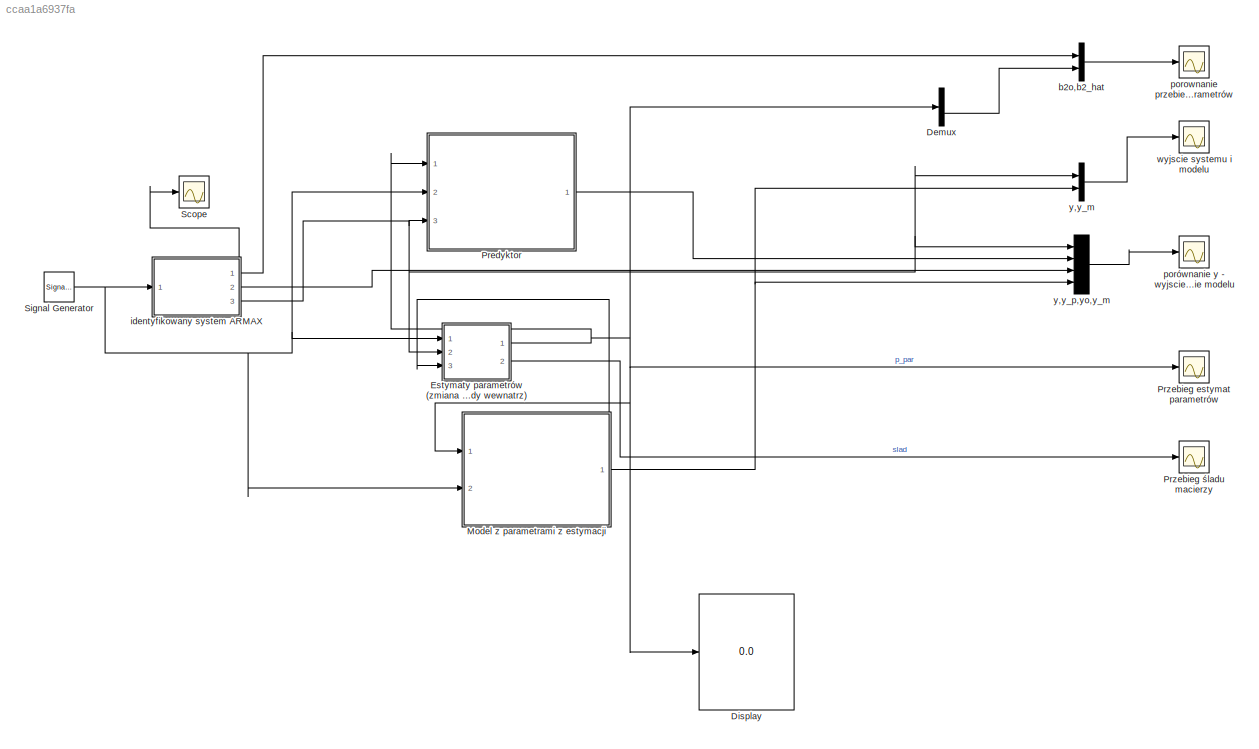
MODEL mdl_ccaa1a6937fa
KIND model
CONFIG AbsTol = auto
CONFIG EnableMultiTasking = on
CONFIG FixedStep = auto
CONFIG MaxStep = auto
CONFIG MinStep = auto
CONFIG RelTol = 1e-3
CONFIG SampleTimeConstraint = Unconstrained
CONFIG SolverName = FixedStepDiscrete
CONFIG StartTime = 0.0
CONFIG StopTime = tend
BLOCK [Demux] Demux
  Outputs = [2;1]
  Ports = [1, 2]
BLOCK [Display] Display
  Decimation = 1
  Ports = [1]
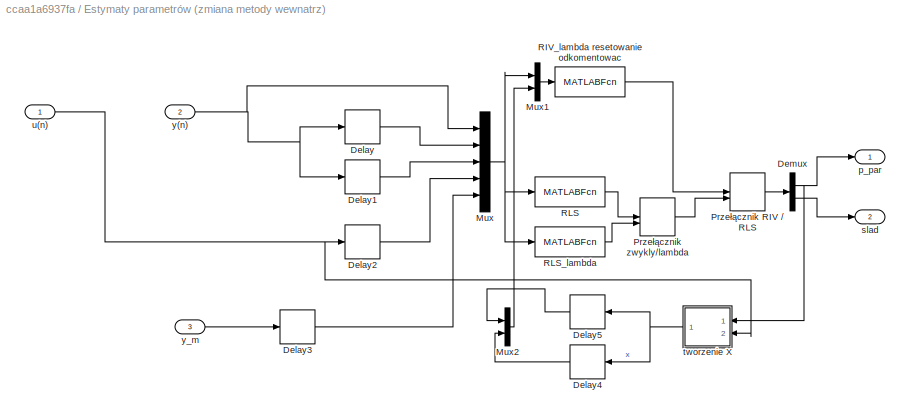
BLOCK [SubSystem] Estymaty parametrów (zmiana metody wewnatrz)
  Ports = [3, 2]
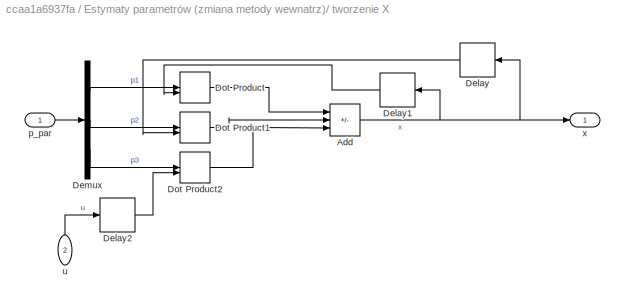
BLOCK [SubSystem] Estymaty parametrów (zmiana metody wewnatrz)/ tworzenie X
  NameLocation = top
  Ports = [2, 1]
BLOCK [Sum] Estymaty parametrów (zmiana metody wewnatrz)/ tworzenie X/Add
  IconShape = rectangular
  Inputs = --+
  Ports = [3, 1]
BLOCK [Delay] Estymaty parametrów (zmiana metody wewnatrz)/ tworzenie X/Delay
  DelayLength = 1
  InitialCondition = 0
  InputPortMap = u0
  NameLocation = top
  Ports = [1, 1]
  SampleTime = Tp
BLOCK [Delay] Estymaty parametrów (zmiana metody wewnatrz)/ tworzenie X/Delay1
  InitialCondition = 0
  InputPortMap = u0
  NameLocation = top
  Ports = [1, 1]
  SampleTime = Tp
BLOCK [Delay] Estymaty parametrów (zmiana metody wewnatrz)/ tworzenie X/Delay2
  InitialCondition = 0
  InputPortMap = u0
  Ports = [1, 1]
  SampleTime = Tp
BLOCK [Demux] Estymaty parametrów (zmiana metody wewnatrz)/ tworzenie X/Demux
  Outputs = 3
  Ports = [1, 3]
BLOCK [DotProduct] Estymaty parametrów (zmiana metody wewnatrz)/ tworzenie X/Dot Product
  OutDataTypeStr = Inherit: Inherit via internal rule
BLOCK [DotProduct] Estymaty parametrów (zmiana metody wewnatrz)/ tworzenie X/Dot Product1
  OutDataTypeStr = Inherit: Inherit via internal rule
BLOCK [DotProduct] Estymaty parametrów (zmiana metody wewnatrz)/ tworzenie X/Dot Product2
  OutDataTypeStr = Inherit: Inherit via internal rule
BLOCK [Inport] Estymaty parametrów (zmiana metody wewnatrz)/ tworzenie X/p_par
BLOCK [Inport] Estymaty parametrów (zmiana metody wewnatrz)/ tworzenie X/u
  NameLocation = right
  Port = 2
BLOCK [Outport] Estymaty parametrów (zmiana metody wewnatrz)/ tworzenie X/x
BLOCK [Delay] Estymaty parametrów (zmiana metody wewnatrz)/Delay
  DelayLength = 1
  InitialCondition = 0
  InputPortMap = u0
  Ports = [1, 1]
BLOCK [Delay] Estymaty parametrów (zmiana metody wewnatrz)/Delay1
  InitialCondition = 0
  InputPortMap = u0
  Ports = [1, 1]
BLOCK [Delay] Estymaty parametrów (zmiana metody wewnatrz)/Delay2
  InitialCondition = 0
  InputPortMap = u0
  Ports = [1, 1]
BLOCK [Delay] Estymaty parametrów (zmiana metody wewnatrz)/Delay3
  DelayLength = 1
  InitialCondition = 0
  InputPortMap = u0
  Ports = [1, 1]
BLOCK [Delay] Estymaty parametrów (zmiana metody wewnatrz)/Delay4
  InitialCondition = 0
  InputPortMap = u0
  NameLocation = top
  Ports = [1, 1]
  SampleTime = Tp
BLOCK [Delay] Estymaty parametrów (zmiana metody wewnatrz)/Delay5
  DelayLength = 1
  InitialCondition = 0
  InputPortMap = u0
  NameLocation = top
  Ports = [1, 1]
  SampleTime = Tp
BLOCK [Demux] Estymaty parametrów (zmiana metody wewnatrz)/Demux
  Outputs = [3;1]
  Ports = [1, 2]
BLOCK [Mux] Estymaty parametrów (zmiana metody wewnatrz)/Mux
  DisplayOption = bar
  Inputs = 5
  Ports = [5, 1]
BLOCK [Mux] Estymaty parametrów (zmiana metody wewnatrz)/Mux1
  DisplayOption = bar
  Inputs = 2
  Ports = [2, 1]
BLOCK [Mux] Estymaty parametrów (zmiana metody wewnatrz)/Mux2
  DisplayOption = bar
  Inputs = 2
  Ports = [2, 1]
BLOCK [ManualSwitch] Estymaty parametrów (zmiana metody wewnatrz)/Przełącznik RIV // RLS
  CurrentSetting = 0
BLOCK [ManualSwitch] Estymaty parametrów (zmiana metody wewnatrz)/Przełącznik zwykly//lambda
  CurrentSetting = 0
BLOCK [MATLABFcn] Estymaty parametrów (zmiana metody wewnatrz)/RIV_lambda resetowanie odkomentowac
  MATLABFcn = RIV_lambda
  OutputDimensions = 4
  Ports = [1, 1]
BLOCK [MATLABFcn] Estymaty parametrów (zmiana metody wewnatrz)/RLS
  MATLABFcn = RLS_fcn
  OutputDimensions = 4
  Ports = [1, 1]
BLOCK [MATLABFcn] Estymaty parametrów (zmiana metody wewnatrz)/RLS_lambda
  MATLABFcn = RLS_lambda
  OutputDimensions = 4
  Ports = [1, 1]
BLOCK [Outport] Estymaty parametrów (zmiana metody wewnatrz)/p_par
BLOCK [Outport] Estymaty parametrów (zmiana metody wewnatrz)/slad
  Port = 2
BLOCK [Inport] Estymaty parametrów (zmiana metody wewnatrz)/u(n)
BLOCK [Inport] Estymaty parametrów (zmiana metody wewnatrz)/y(n)
  Port = 2
BLOCK [Inport] Estymaty parametrów (zmiana metody wewnatrz)/y_m
  Port = 3
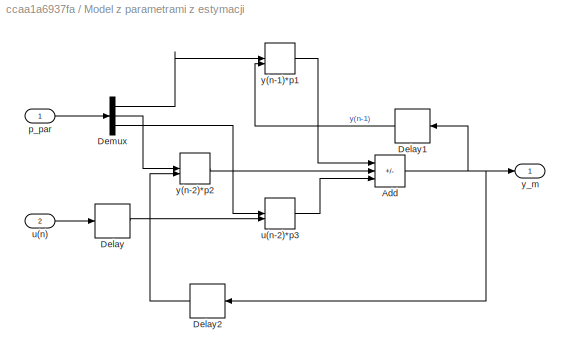
BLOCK [SubSystem] Model z parametrami z estymacji
  Ports = [2, 1]
BLOCK [Sum] Model z parametrami z estymacji/Add
  IconShape = rectangular
  Inputs = --+
  Ports = [3, 1]
BLOCK [Delay] Model z parametrami z estymacji/Delay
  InitialCondition = 0
  InputPortMap = u0
  Ports = [1, 1]
BLOCK [Delay] Model z parametrami z estymacji/Delay1
  DelayLength = 1
  InitialCondition = 0
  InputPortMap = u0
  NameLocation = top
  Ports = [1, 1]
BLOCK [Delay] Model z parametrami z estymacji/Delay2
  InitialCondition = 0
  InputPortMap = u0
  NameLocation = top
  Ports = [1, 1]
BLOCK [Demux] Model z parametrami z estymacji/Demux
  Outputs = 3
  Ports = [1, 3]
BLOCK [Inport] Model z parametrami z estymacji/p_par
BLOCK [Inport] Model z parametrami z estymacji/u(n)
  Port = 2
BLOCK [DotProduct] Model z parametrami z estymacji/u(n-2)*p3
  OutDataTypeStr = Inherit: Inherit via internal rule
BLOCK [DotProduct] Model z parametrami z estymacji/y(n-1)*p1
  OutDataTypeStr = Inherit: Inherit via internal rule
BLOCK [DotProduct] Model z parametrami z estymacji/y(n-2)*p2
  OutDataTypeStr = Inherit: Inherit via internal rule
BLOCK [Outport] Model z parametrami z estymacji/y_m
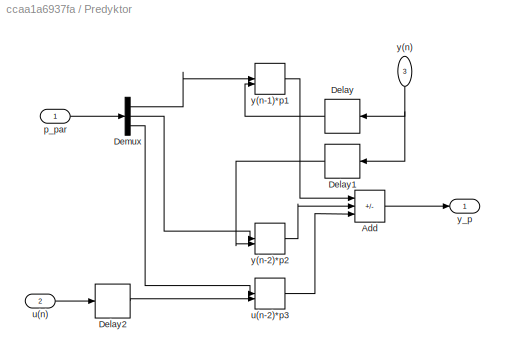
BLOCK [SubSystem] Predyktor
  Ports = [3, 1]
BLOCK [Sum] Predyktor/Add
  IconShape = rectangular
  Inputs = --+
  Ports = [3, 1]
BLOCK [Delay] Predyktor/Delay
  DelayLength = 1
  InitialCondition = 0
  InputPortMap = u0
  NameLocation = top
  Ports = [1, 1]
BLOCK [Delay] Predyktor/Delay1
  InitialCondition = 0
  InputPortMap = u0
  NameLocation = top
  Ports = [1, 1]
BLOCK [Delay] Predyktor/Delay2
  InitialCondition = 0
  InputPortMap = u0
  Ports = [1, 1]
BLOCK [Demux] Predyktor/Demux
  Outputs = 3
  Ports = [1, 3]
BLOCK [Inport] Predyktor/p_par
BLOCK [Inport] Predyktor/u(n)
  Port = 2
BLOCK [DotProduct] Predyktor/u(n-2)*p3
  OutDataTypeStr = Inherit: Inherit via internal rule
BLOCK [Inport] Predyktor/y(n)
  NameLocation = left
  Port = 3
BLOCK [DotProduct] Predyktor/y(n-1)*p1
  OutDataTypeStr = Inherit: Inherit via internal rule
BLOCK [DotProduct] Predyktor/y(n-2)*p2
  OutDataTypeStr = Inherit: Inherit via internal rule
BLOCK [Outport] Predyktor/y_p
BLOCK [Scope] Przebieg estymat parametrów
  Floating = off
  NumInputPorts = 1
  Ports = [1]
  ScopeSpecificationString = Simulink.scopes.TimeScopeBlockCfg('CurrentConfiguration', extmgr.ConfigurationSet(extmgr.Configuration('Core','General UI',true),extmgr.Configuration('Core','Source UI',true),extmgr.Configuration('Sources','WiredSimulink',true,'DataLoggingVariableName','ScopeData1'),extmgr.Configuration('Visuals','Time Domain',true,'SerializedDisplays',{struct('MinYLimReal','-2.21596','MaxYLimReal','1.2427','YLabe...<+1386ch>
BLOCK [Scope] Przebieg śladu macierzy
  Floating = off
  NumInputPorts = 1
  Ports = [1]
  ScopeSpecificationString = Simulink.scopes.TimeScopeBlockCfg('CurrentConfiguration', extmgr.ConfigurationSet(extmgr.Configuration('Core','General UI',true),extmgr.Configuration('Core','Source UI',true),extmgr.Configuration('Sources','WiredSimulink',true,'DataLoggingVariableName','ScopeData2'),extmgr.Configuration('Visuals','Time Domain',true,'SerializedDisplays',{struct('MinYLimReal','-3.14185','MaxYLimReal','34.34455','YLa...<+1394ch>
BLOCK [Scope] Scope
  Floating = off
  NumInputPorts = 1
  Ports = [1]
  ScopeSpecificationString = Simulink.scopes.TimeScopeBlockCfg('CurrentConfiguration', extmgr.ConfigurationSet(extmgr.Configuration('Core','General UI',true),extmgr.Configuration('Core','Source UI',true),extmgr.Configuration('Sources','WiredSimulink',true,'DataLoggingVariableName','ScopeData3'),extmgr.Configuration('Visuals','Time Domain',true,'SerializedDisplays',{struct('MinYLimReal','-9.62705','MaxYLimReal','9.6055','YLabe...<+1414ch>
BLOCK [SignalGenerator] Signal Generator
  Frequency = 0.025
  Ports = [0, 1]
  WaveForm = square
BLOCK [Mux] b2o,b2_hat
  DisplayOption = bar
  Inputs = 2
  Ports = [2, 1]
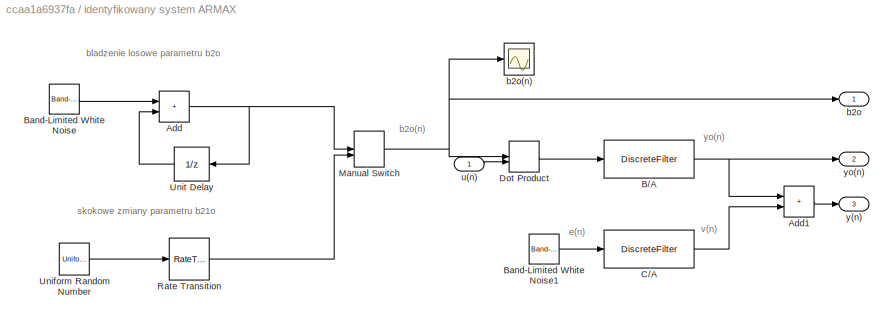
BLOCK [SubSystem] identyfikowany system ARMAX
  Ports = [1, 3]
BLOCK [Sum] identyfikowany system ARMAX/Add
  IconShape = rectangular
  Ports = [2, 1]
BLOCK [Sum] identyfikowany system ARMAX/Add1
  IconShape = rectangular
  Ports = [2, 1]
BLOCK [DiscreteFilter] identyfikowany system ARMAX/B//A
  Denominator = [1 -0.8 -0.1]
  InputPortMap = u0
  Numerator = [0 0 1]
  Ports = [1, 1]
  SampleTime = Tp
BLOCK [Reference] identyfikowany system ARMAX/Band-Limited White Noise  REF=simulink/Sources/Band-Limited
White Noise
  Ports = [0, 1]
  SourceBlock = simulink/Sources/Band-Limited\nWhite Noise
  SourceType = Band-Limited White Noise.
BLOCK [Reference] identyfikowany system ARMAX/Band-Limited White Noise1  REF=simulink/Sources/Band-Limited
White Noise
  Ports = [0, 1]
  SourceBlock = simulink/Sources/Band-Limited\nWhite Noise
  SourceType = Band-Limited White Noise.
BLOCK [DiscreteFilter] identyfikowany system ARMAX/C//A
  Denominator = [1 -0.8 -0.1]
  InputPortMap = u0
  Numerator = [1 c1o]
  Ports = [1, 1]
  SampleTime = Tp
BLOCK [DotProduct] identyfikowany system ARMAX/Dot Product
  OutDataTypeStr = Inherit: Inherit via internal rule
BLOCK [ManualSwitch] identyfikowany system ARMAX/Manual Switch
  CurrentSetting = 0
BLOCK [RateTransition] identyfikowany system ARMAX/Rate Transition
  InitialCondition = 0.5
  OutPortSampleTime = Tp
BLOCK [UniformRandomNumber] identyfikowany system ARMAX/Uniform Random Number
  Maximum = 0.8
  Minimum = 0.1
  SampleTime = Td
  Seed = 2
BLOCK [UnitDelay] identyfikowany system ARMAX/Unit Delay
  NameLocation = top
  SampleTime = Tp
BLOCK [Outport] identyfikowany system ARMAX/b2o
BLOCK [Scope] identyfikowany system ARMAX/b2o(n)
  Floating = off
  NumInputPorts = 1
  Ports = [1]
  ScopeSpecificationString = C++SS(StrPVP('Location','[188, 390, 512, 629]'),StrPVP('Open','off'),MxPVP('AxesTitles',54,'struct(''axes1'',''%<SignalLabel>'')'),StrPVP('DataFormat','StructureWithTime'),StrPVP('BlockParamSampleTime','0'),StrPVP('LimitDataPoints','on'),StrPVP('Decimation','1'),StrPVP('BlockParamSampleInput','off'))
BLOCK [Inport] identyfikowany system ARMAX/u(n)
BLOCK [Outport] identyfikowany system ARMAX/y(n)
  Port = 3
BLOCK [Outport] identyfikowany system ARMAX/yo(n)
  Port = 2
BLOCK [Scope] porownanie przebiegów parametrów
  Floating = off
  NumInputPorts = 1
  Ports = [1]
  ScopeSpecificationString = Simulink.scopes.TimeScopeBlockCfg('CurrentConfiguration', extmgr.ConfigurationSet(extmgr.Configuration('Core','General UI',true),extmgr.Configuration('Core','Source UI',true),extmgr.Configuration('Sources','WiredSimulink',true,'DataLoggingVariableName','ScopeData4'),extmgr.Configuration('Visuals','Time Domain',true,'SerializedDisplays',{struct('MinYLimReal','-0.10919','MaxYLimReal','0.98268','YLab...<+1392ch>
BLOCK [Scope] porównanie y - wyjscie systemu y_p - predyktor yo - wyjscie systemu bez szumu y_m - wyjscie modelu 
  Floating = off
  NumInputPorts = 1
  Ports = [1]
  ScopeSpecificationString = Simulink.scopes.TimeScopeBlockCfg('CurrentConfiguration', extmgr.ConfigurationSet(extmgr.Configuration('Core','General UI',true),extmgr.Configuration('Core','Source UI',true),extmgr.Configuration('Sources','WiredSimulink',true,'DataLoggingVariableName','ScopeData5'),extmgr.Configuration('Visuals','Time Domain',true,'SerializedDisplays',{struct('MinYLimReal','-16822121114500400575526026232813891137...<+2625ch>
BLOCK [Scope] wyjscie systemu i modelu
  Floating = off
  NumInputPorts = 1
  Ports = [1]
  ScopeSpecificationString = Simulink.scopes.TimeScopeBlockCfg('CurrentConfiguration', extmgr.ConfigurationSet(extmgr.Configuration('Core','General UI',true),extmgr.Configuration('Core','Source UI',true),extmgr.Configuration('Sources','WiredSimulink',true,'DataLoggingVariableName','ScopeData6'),extmgr.Configuration('Visuals','Time Domain',true,'SerializedDisplays',{struct('MinYLimReal','-42323418057458013957309615990001732309...<+2150ch>
BLOCK [Mux] y,y_m
  DisplayOption = bar
  Inputs = 2
  Ports = [2, 1]
BLOCK [Mux] y,y_p,yo,y_m
  DisplayOption = bar
  Ports = [4, 1]
ANNOTATION identyfikowany system ARMAX: b2o(n)
ANNOTATION identyfikowany system ARMAX: bladzenie losowe parametru b2o
ANNOTATION identyfikowany system ARMAX: e(n)
ANNOTATION identyfikowany system ARMAX: skokowe zmiany parametru b21o
ANNOTATION identyfikowany system ARMAX: v(n)
ANNOTATION identyfikowany system ARMAX: yo(n)
LINE Demux:2 -> b2o,b2_hat:2
NET Estymaty parametrów (zmiana metody wewnatrz)/ tworzenie X/Add:1 -> Estymaty parametrów (zmiana metody wewnatrz)/ tworzenie X/Delay1:1, Estymaty parametrów (zmiana metody wewnatrz)/ tworzenie X/Delay:1, Estymaty parametrów (zmiana metody wewnatrz)/ tworzenie X/x:1
LINE Estymaty parametrów (zmiana metody wewnatrz)/ tworzenie X/Delay1:1 -> Estymaty parametrów (zmiana metody wewnatrz)/ tworzenie X/Dot Product:2
LINE Estymaty parametrów (zmiana metody wewnatrz)/ tworzenie X/Delay2:1 -> Estymaty parametrów (zmiana metody wewnatrz)/ tworzenie X/Dot Product2:2
LINE Estymaty parametrów (zmiana metody wewnatrz)/ tworzenie X/Delay:1 -> Estymaty parametrów (zmiana metody wewnatrz)/ tworzenie X/Dot Product1:2
LINE Estymaty parametrów (zmiana metody wewnatrz)/ tworzenie X/Demux:1 -> Estymaty parametrów (zmiana metody wewnatrz)/ tworzenie X/Dot Product:1
LINE Estymaty parametrów (zmiana metody wewnatrz)/ tworzenie X/Demux:2 -> Estymaty parametrów (zmiana metody wewnatrz)/ tworzenie X/Dot Product1:1
LINE Estymaty parametrów (zmiana metody wewnatrz)/ tworzenie X/Demux:3 -> Estymaty parametrów (zmiana metody wewnatrz)/ tworzenie X/Dot Product2:1
LINE Estymaty parametrów (zmiana metody wewnatrz)/ tworzenie X/Dot Product1:1 -> Estymaty parametrów (zmiana metody wewnatrz)/ tworzenie X/Add:2
LINE Estymaty parametrów (zmiana metody wewnatrz)/ tworzenie X/Dot Product2:1 -> Estymaty parametrów (zmiana metody wewnatrz)/ tworzenie X/Add:3
LINE Estymaty parametrów (zmiana metody wewnatrz)/ tworzenie X/Dot Product:1 -> Estymaty parametrów (zmiana metody wewnatrz)/ tworzenie X/Add:1
LINE Estymaty parametrów (zmiana metody wewnatrz)/ tworzenie X/p_par:1 -> Estymaty parametrów (zmiana metody wewnatrz)/ tworzenie X/Demux:1
LINE Estymaty parametrów (zmiana metody wewnatrz)/ tworzenie X/u:1 -> Estymaty parametrów (zmiana metody wewnatrz)/ tworzenie X/Delay2:1
NET Estymaty parametrów (zmiana metody wewnatrz)/ tworzenie X:1 -> Estymaty parametrów (zmiana metody wewnatrz)/Delay4:1, Estymaty parametrów (zmiana metody wewnatrz)/Delay5:1
LINE Estymaty parametrów (zmiana metody wewnatrz)/Delay1:1 -> Estymaty parametrów (zmiana metody wewnatrz)/Mux:3
LINE Estymaty parametrów (zmiana metody wewnatrz)/Delay2:1 -> Estymaty parametrów (zmiana metody wewnatrz)/Mux:4
LINE Estymaty parametrów (zmiana metody wewnatrz)/Delay3:1 -> Estymaty parametrów (zmiana metody wewnatrz)/Mux:5
LINE Estymaty parametrów (zmiana metody wewnatrz)/Delay4:1 -> Estymaty parametrów (zmiana metody wewnatrz)/Mux2:2
LINE Estymaty parametrów (zmiana metody wewnatrz)/Delay5:1 -> Estymaty parametrów (zmiana metody wewnatrz)/Mux2:1
LINE Estymaty parametrów (zmiana metody wewnatrz)/Delay:1 -> Estymaty parametrów (zmiana metody wewnatrz)/Mux:2
NET Estymaty parametrów (zmiana metody wewnatrz)/Demux:1 -> Estymaty parametrów (zmiana metody wewnatrz)/ tworzenie X:1, Estymaty parametrów (zmiana metody wewnatrz)/p_par:1
LINE Estymaty parametrów (zmiana metody wewnatrz)/Demux:2 -> Estymaty parametrów (zmiana metody wewnatrz)/slad:1
LINE Estymaty parametrów (zmiana metody wewnatrz)/Mux1:1 -> Estymaty parametrów (zmiana metody wewnatrz)/RIV_lambda resetowanie odkomentowac:1
LINE Estymaty parametrów (zmiana metody wewnatrz)/Mux2:1 -> Estymaty parametrów (zmiana metody wewnatrz)/Mux1:2
NET Estymaty parametrów (zmiana metody wewnatrz)/Mux:1 -> Estymaty parametrów (zmiana metody wewnatrz)/Mux1:1, Estymaty parametrów (zmiana metody wewnatrz)/RLS:1, Estymaty parametrów (zmiana metody wewnatrz)/RLS_lambda:1
LINE Estymaty parametrów (zmiana metody wewnatrz)/Przełącznik RIV // RLS:1 -> Estymaty parametrów (zmiana metody wewnatrz)/Demux:1
LINE Estymaty parametrów (zmiana metody wewnatrz)/Przełącznik zwykly//lambda:1 -> Estymaty parametrów (zmiana metody wewnatrz)/Przełącznik RIV // RLS:2
LINE Estymaty parametrów (zmiana metody wewnatrz)/RIV_lambda resetowanie odkomentowac:1 -> Estymaty parametrów (zmiana metody wewnatrz)/Przełącznik RIV // RLS:1
LINE Estymaty parametrów (zmiana metody wewnatrz)/RLS:1 -> Estymaty parametrów (zmiana metody wewnatrz)/Przełącznik zwykly//lambda:1
LINE Estymaty parametrów (zmiana metody wewnatrz)/RLS_lambda:1 -> Estymaty parametrów (zmiana metody wewnatrz)/Przełącznik zwykly//lambda:2
NET Estymaty parametrów (zmiana metody wewnatrz)/u(n):1 -> Estymaty parametrów (zmiana metody wewnatrz)/ tworzenie X:2, Estymaty parametrów (zmiana metody wewnatrz)/Delay2:1
NET Estymaty parametrów (zmiana metody wewnatrz)/y(n):1 -> Estymaty parametrów (zmiana metody wewnatrz)/Delay1:1, Estymaty parametrów (zmiana metody wewnatrz)/Delay:1, Estymaty parametrów (zmiana metody wewnatrz)/Mux:1
LINE Estymaty parametrów (zmiana metody wewnatrz)/y_m:1 -> Estymaty parametrów (zmiana metody wewnatrz)/Delay3:1
NET Estymaty parametrów (zmiana metody wewnatrz):1 -> Demux:1, Display:1, Model z parametrami z estymacji:1, Predyktor:1, Przebieg estymat parametrów:1
LINE Estymaty parametrów (zmiana metody wewnatrz):2 -> Przebieg śladu macierzy:1
NET Model z parametrami z estymacji/Add:1 -> Model z parametrami z estymacji/Delay1:1, Model z parametrami z estymacji/Delay2:1, Model z parametrami z estymacji/y_m:1
LINE Model z parametrami z estymacji/Delay1:1 -> Model z parametrami z estymacji/y(n-1)*p1:2
LINE Model z parametrami z estymacji/Delay2:1 -> Model z parametrami z estymacji/y(n-2)*p2:2
LINE Model z parametrami z estymacji/Delay:1 -> Model z parametrami z estymacji/u(n-2)*p3:2
LINE Model z parametrami z estymacji/Demux:1 -> Model z parametrami z estymacji/y(n-1)*p1:1
LINE Model z parametrami z estymacji/Demux:2 -> Model z parametrami z estymacji/y(n-2)*p2:1
LINE Model z parametrami z estymacji/Demux:3 -> Model z parametrami z estymacji/u(n-2)*p3:1
LINE Model z parametrami z estymacji/p_par:1 -> Model z parametrami z estymacji/Demux:1
LINE Model z parametrami z estymacji/u(n):1 -> Model z parametrami z estymacji/Delay:1
LINE Model z parametrami z estymacji/u(n-2)*p3:1 -> Model z parametrami z estymacji/Add:3
LINE Model z parametrami z estymacji/y(n-1)*p1:1 -> Model z parametrami z estymacji/Add:1
LINE Model z parametrami z estymacji/y(n-2)*p2:1 -> Model z parametrami z estymacji/Add:2
NET Model z parametrami z estymacji:1 -> Estymaty parametrów (zmiana metody wewnatrz):3, y,y_m:2, y,y_p,yo,y_m:4
LINE Predyktor/Add:1 -> Predyktor/y_p:1
LINE Predyktor/Delay1:1 -> Predyktor/y(n-2)*p2:2
LINE Predyktor/Delay2:1 -> Predyktor/u(n-2)*p3:2
LINE Predyktor/Delay:1 -> Predyktor/y(n-1)*p1:2
LINE Predyktor/Demux:1 -> Predyktor/y(n-1)*p1:1
LINE Predyktor/Demux:2 -> Predyktor/y(n-2)*p2:1
LINE Predyktor/Demux:3 -> Predyktor/u(n-2)*p3:1
LINE Predyktor/p_par:1 -> Predyktor/Demux:1
LINE Predyktor/u(n):1 -> Predyktor/Delay2:1
LINE Predyktor/u(n-2)*p3:1 -> Predyktor/Add:3
NET Predyktor/y(n):1 -> Predyktor/Delay1:1, Predyktor/Delay:1
LINE Predyktor/y(n-1)*p1:1 -> Predyktor/Add:1
LINE Predyktor/y(n-2)*p2:1 -> Predyktor/Add:2
LINE Predyktor:1 -> y,y_p,yo,y_m:2
NET Signal Generator:1 -> Estymaty parametrów (zmiana metody wewnatrz):1, Model z parametrami z estymacji:2, Predyktor:2, identyfikowany system ARMAX:1
LINE b2o,b2_hat:1 -> porownanie przebiegów parametrów:1
LINE identyfikowany system ARMAX/Add1:1 -> identyfikowany system ARMAX/y(n):1
NET identyfikowany system ARMAX/Add:1 -> identyfikowany system ARMAX/Manual Switch:1, identyfikowany system ARMAX/Unit Delay:1
NET identyfikowany system ARMAX/B//A:1 -> identyfikowany system ARMAX/Add1:1, identyfikowany system ARMAX/yo(n):1
LINE identyfikowany system ARMAX/Band-Limited White Noise1:1 -> identyfikowany system ARMAX/C//A:1
LINE identyfikowany system ARMAX/Band-Limited White Noise:1 -> identyfikowany system ARMAX/Add:1
LINE identyfikowany system ARMAX/C//A:1 -> identyfikowany system ARMAX/Add1:2
LINE identyfikowany system ARMAX/Dot Product:1 -> identyfikowany system ARMAX/B//A:1
NET identyfikowany system ARMAX/Manual Switch:1 -> identyfikowany system ARMAX/Dot Product:1, identyfikowany system ARMAX/b2o(n):1, identyfikowany system ARMAX/b2o:1
LINE identyfikowany system ARMAX/Rate Transition:1 -> identyfikowany system ARMAX/Manual Switch:2
LINE identyfikowany system ARMAX/Uniform Random Number:1 -> identyfikowany system ARMAX/Rate Transition:1
LINE identyfikowany system ARMAX/Unit Delay:1 -> identyfikowany system ARMAX/Add:2
LINE identyfikowany system ARMAX/u(n):1 -> identyfikowany system ARMAX/Dot Product:2
LINE identyfikowany system ARMAX:1 -> b2o,b2_hat:1
LINE identyfikowany system ARMAX:2 -> y,y_p,yo,y_m:3
NET identyfikowany system ARMAX:3 -> Estymaty parametrów (zmiana metody wewnatrz):2, Predyktor:3, Scope:1, y,y_m:1, y,y_p,yo,y_m:1
LINE y,y_m:1 -> wyjscie systemu i modelu:1
LINE y,y_p,yo,y_m:1 -> porównanie y - wyjscie systemu y_p - predyktor yo - wyjscie systemu bez szumu y_m - wyjscie modelu :1
note: NET lines group one-source signal fan-out (src -> all destinations, sorted); 1:1 wires keep LINE
